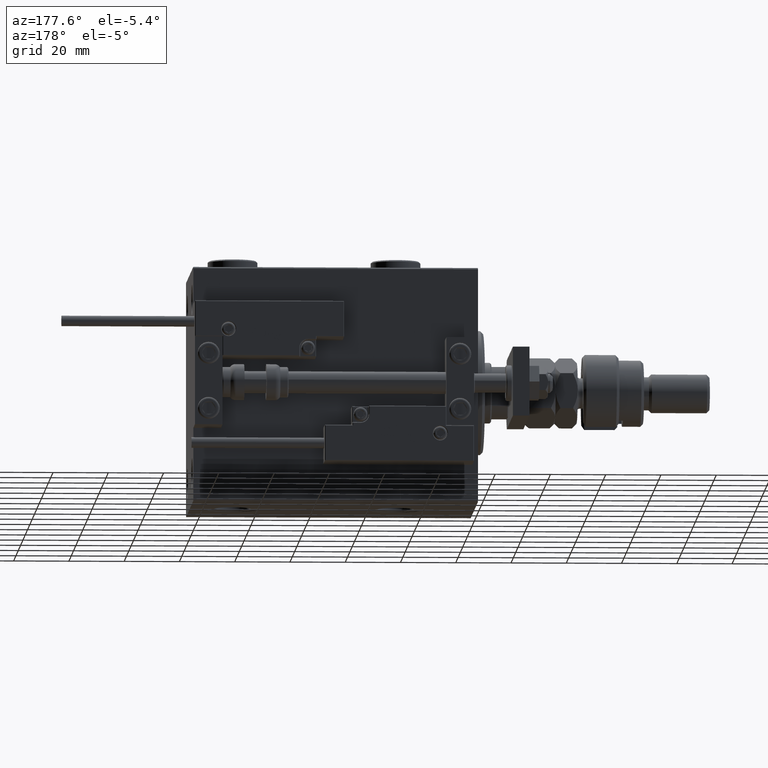
[diagram: clean part render]
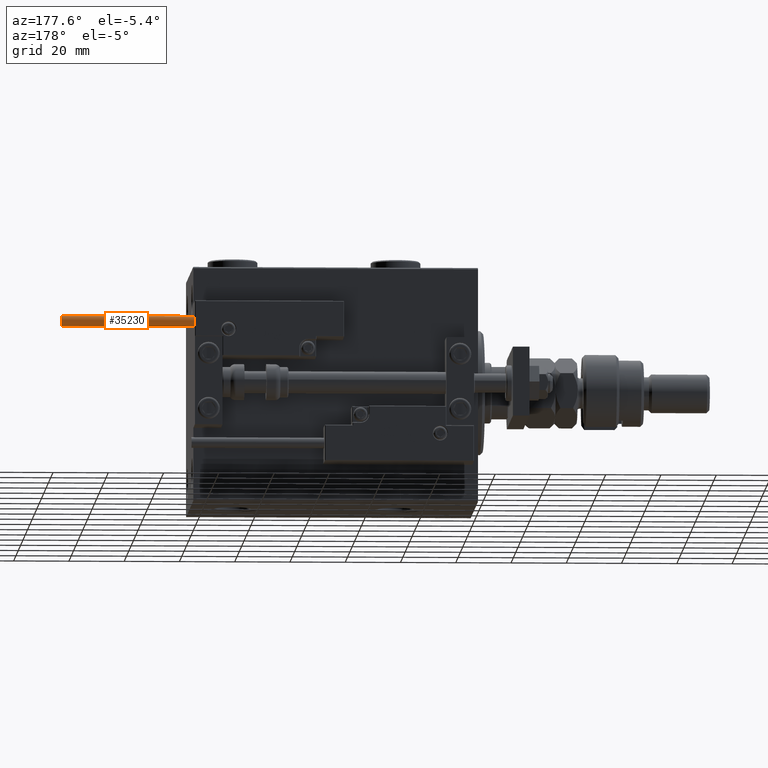
[diagram: same view with one face highlighted and labeled with its STEP entity id]
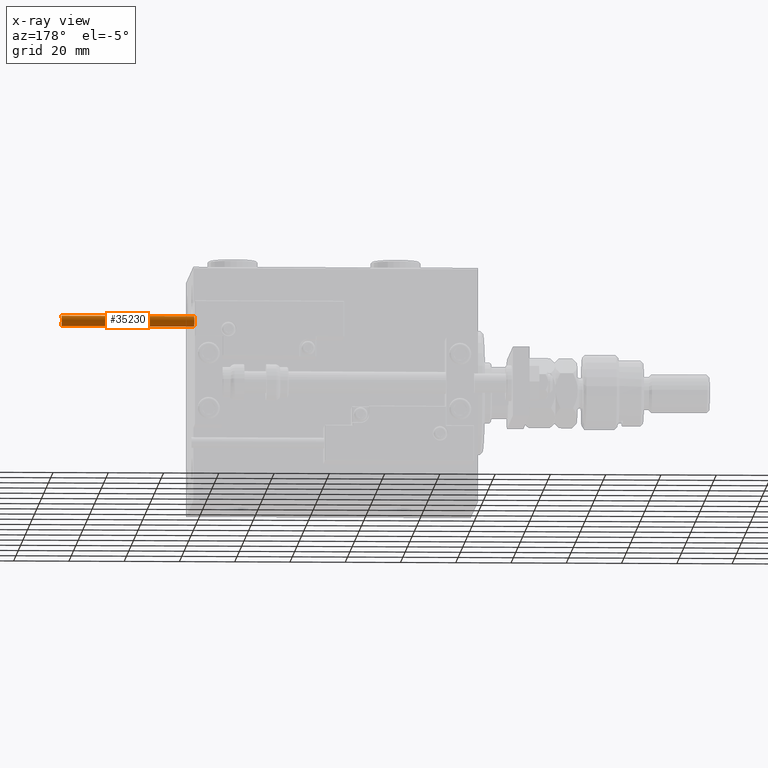
[diagram: x-ray of the same camera — body ghosted, the highlighted face saturated]
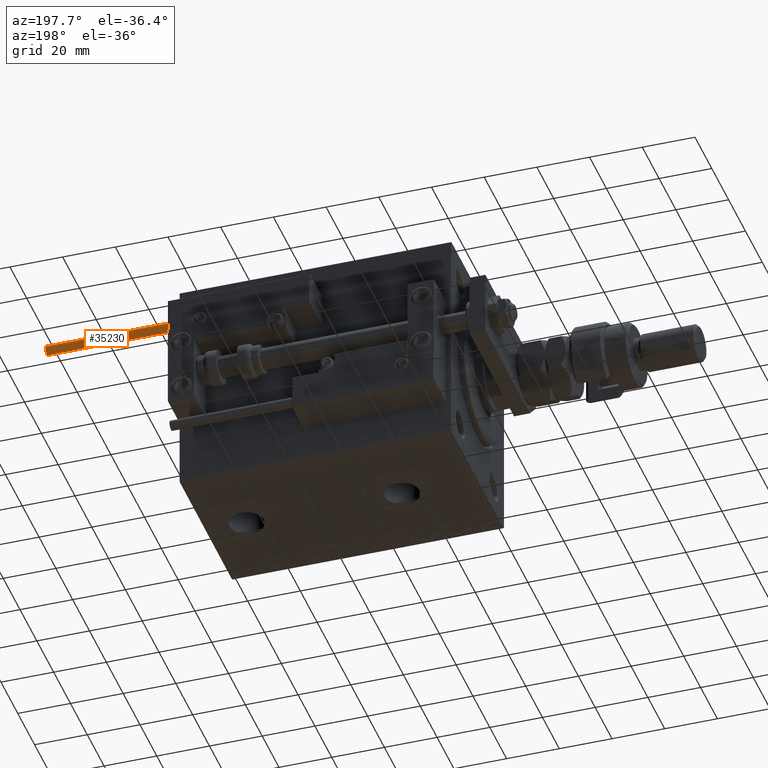
[diagram: same view with one face highlighted and labeled with its STEP entity id]
A machine part, auxiliary view. The second image highlights one B-rep face of the part: STEP entity #35230.
The next image is the same camera in x-ray: the body ghosted, the highlighted face saturated — about 0% of this face is hidden behind the body in this view.
A second angle (auxiliary view) of the same face is appended — the face is thin or edge-on in the first view.
In plain terms, the highlighted cylindrical surface (edge-blend (fillet) strip) has radius 1.9 mm, axis along (-1, -0, -0).
Its self-contained STEP definition (entity closure, byte-faithful):
#745 = ORIENTED_EDGE ( 'NONE', *, *, #10888, .T. ) ;
#761 = VERTEX_POINT ( 'NONE', #54054 ) ;
#1261 = CARTESIAN_POINT ( 'NONE',  ( 0.000000000000000000, 0.000000000000000000, 48.00000000000000000 ) ) ;
#1526 = AXIS2_PLACEMENT_3D ( 'NONE', #1261, #47758, #1534 ) ;
#1534 = DIRECTION ( 'NONE',  ( 1.000000000000000000, 0.000000000000000000, 0.000000000000000000 ) ) ;
#2256 = CARTESIAN_POINT ( 'NONE',  ( 1.899999999999999467, 2.326828918379970872E-16, 48.00000000000000000 ) ) ;
#2813 = DIRECTION ( 'NONE',  ( -0.000000000000000000, -0.000000000000000000, -1.000000000000000000 ) ) ;
#7346 = AXIS2_PLACEMENT_3D ( 'NONE', #54400, #49363, #16028 ) ;
#7773 = CIRCLE ( 'NONE', #1526, 1.899999999999999467 ) ;
#10178 = ORIENTED_EDGE ( 'NONE', *, *, #21762, .F. ) ;
#10888 = EDGE_CURVE ( 'NONE', #49778, #55322, #28007, .T. ) ;
#15061 = VECTOR ( 'NONE', #44807, 1000.000000000000000 ) ;
#15540 = CARTESIAN_POINT ( 'NONE',  ( 1.899999999999999467, 2.326828918379970872E-16, 0.000000000000000000 ) ) ;
#16028 = DIRECTION ( 'NONE',  ( 1.000000000000000000, 0.000000000000000000, 0.000000000000000000 ) ) ;
#16514 = EDGE_LOOP ( 'NONE', ( #43832, #745, #26107, #10178 ) ) ;
#17162 = VECTOR ( 'NONE', #2813, 1000.000000000000000 ) ;
#18042 = CIRCLE ( 'NONE', #7346, 1.899999999999999467 ) ;
#19637 = CYLINDRICAL_SURFACE ( 'NONE', #19766, 1.899999999999999467 ) ;
#19766 = AXIS2_PLACEMENT_3D ( 'NONE', #24879, #36725, #49607 ) ;
#21344 = EDGE_CURVE ( 'NONE', #55322, #761, #18042, .T. ) ;
#21762 = EDGE_CURVE ( 'NONE', #41100, #761, #28284, .T. ) ;
#24879 = CARTESIAN_POINT ( 'NONE',  ( 0.000000000000000000, 0.000000000000000000, 48.00000000000000000 ) ) ;
#26107 = ORIENTED_EDGE ( 'NONE', *, *, #21344, .T. ) ;
#28007 = LINE ( 'NONE', #2256, #15061 ) ;
#28284 = LINE ( 'NONE', #45374, #17162 ) ;
#32529 = FACE_OUTER_BOUND ( 'NONE', #16514, .T. ) ;
#35230 = ADVANCED_FACE ( 'NONE', ( #32529 ), #19637, .T. ) ;
#36725 = DIRECTION ( 'NONE',  ( -0.000000000000000000, -0.000000000000000000, -1.000000000000000000 ) ) ;
#40903 = CARTESIAN_POINT ( 'NONE',  ( 1.899999999999999467, 2.326828918379970872E-16, 48.00000000000000000 ) ) ;
#41100 = VERTEX_POINT ( 'NONE', #51973 ) ;
#43832 = ORIENTED_EDGE ( 'NONE', *, *, #54531, .F. ) ;
#44807 = DIRECTION ( 'NONE',  ( -0.000000000000000000, -0.000000000000000000, -1.000000000000000000 ) ) ;
#45374 = CARTESIAN_POINT ( 'NONE',  ( -1.899999999999999467, 0.000000000000000000, 48.00000000000000000 ) ) ;
#47758 = DIRECTION ( 'NONE',  ( 0.000000000000000000, 0.000000000000000000, 1.000000000000000000 ) ) ;
#49363 = DIRECTION ( 'NONE',  ( 0.000000000000000000, 0.000000000000000000, 1.000000000000000000 ) ) ;
#49607 = DIRECTION ( 'NONE',  ( -1.000000000000000000, 0.000000000000000000, 0.000000000000000000 ) ) ;
#49778 = VERTEX_POINT ( 'NONE', #40903 ) ;
#51973 = CARTESIAN_POINT ( 'NONE',  ( -1.899999999999999467, 0.000000000000000000, 48.00000000000000000 ) ) ;
#54054 = CARTESIAN_POINT ( 'NONE',  ( -1.899999999999999467, 0.000000000000000000, 0.000000000000000000 ) ) ;
#54400 = CARTESIAN_POINT ( 'NONE',  ( 0.000000000000000000, 0.000000000000000000, 0.000000000000000000 ) ) ;
#54531 = EDGE_CURVE ( 'NONE', #49778, #41100, #7773, .T. ) ;
#55322 = VERTEX_POINT ( 'NONE', #15540 ) ;